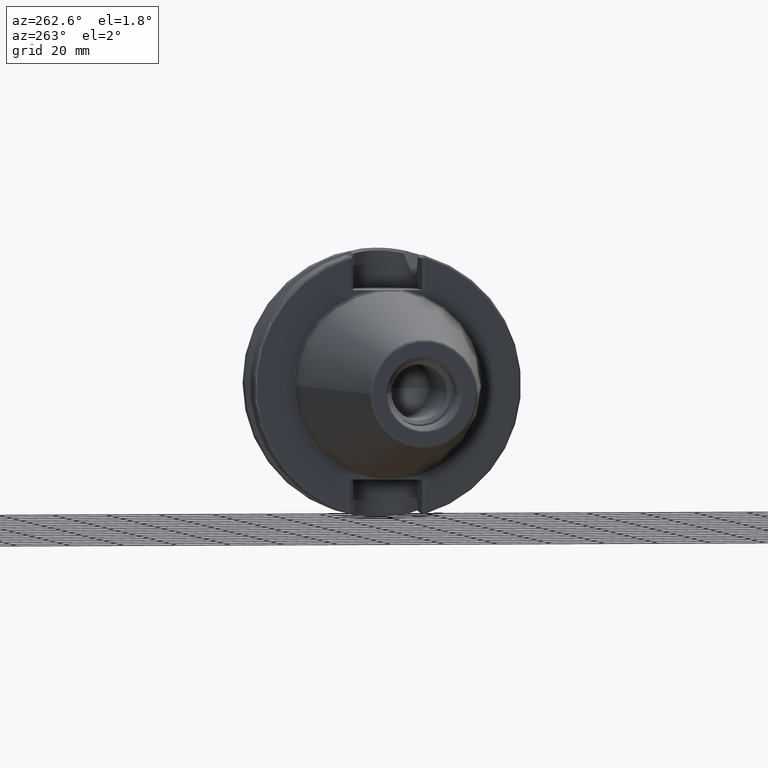
[diagram: clean part render]
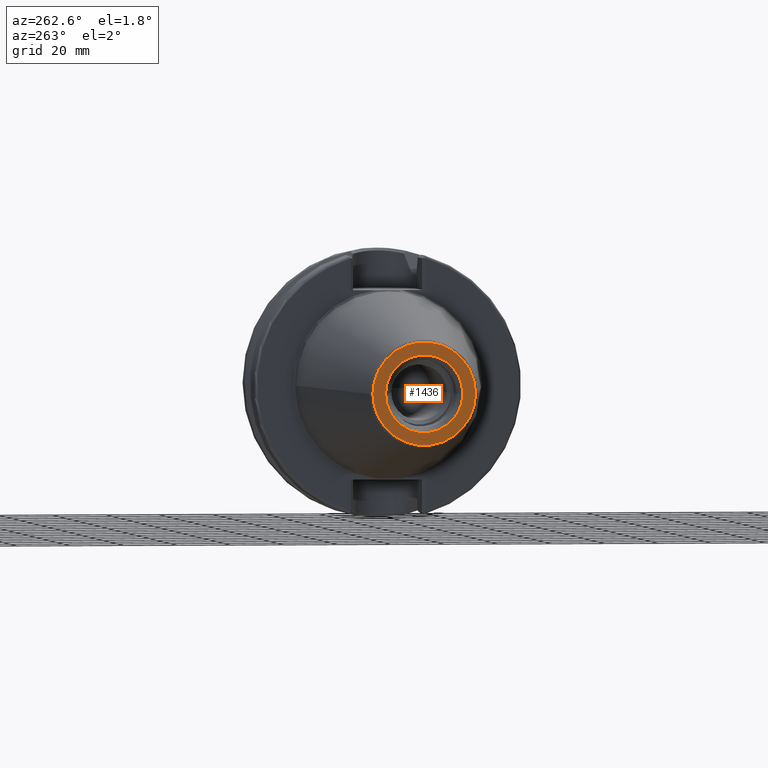
[diagram: same view with one face highlighted and labeled with its STEP entity id]
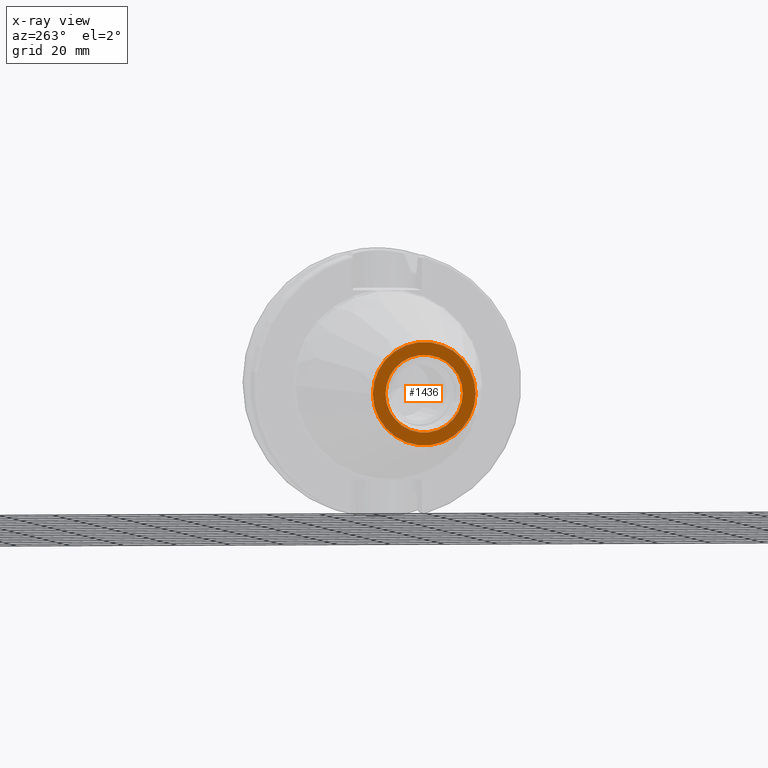
[diagram: x-ray of the same camera — body ghosted, the highlighted face saturated]
A machine part, auxiliary view. The second image highlights one B-rep face of the part: STEP entity #1436.
The next image is the same camera in x-ray: the body ghosted, the highlighted face saturated — about 0% of this face is hidden behind the body in this view.
In plain terms, the highlighted planar face has unit normal (1, 0, 0).
Its self-contained STEP definition (entity closure, byte-faithful):
#2=CARTESIAN_POINT('',(-1.018E2,0.E0,0.E0));
#3=DIRECTION('',(-1.E0,0.E0,0.E0));
#4=DIRECTION('',(0.E0,1.E0,0.E0));
#5=AXIS2_PLACEMENT_3D('',#2,#3,#4);
#7=CARTESIAN_POINT('',(-1.018E2,0.E0,0.E0));
#8=DIRECTION('',(1.E0,0.E0,0.E0));
#9=DIRECTION('',(0.E0,1.E0,0.E0));
#10=AXIS2_PLACEMENT_3D('',#7,#8,#9);
#12=CARTESIAN_POINT('',(-1.018E2,0.E0,0.E0));
#13=DIRECTION('',(1.E0,0.E0,0.E0));
#14=DIRECTION('',(0.E0,1.E0,0.E0));
#15=AXIS2_PLACEMENT_3D('',#12,#13,#14);
#17=CARTESIAN_POINT('',(-1.018E2,0.E0,0.E0));
#18=DIRECTION('',(1.E0,0.E0,0.E0));
#19=DIRECTION('',(0.E0,-1.E0,0.E0));
#20=AXIS2_PLACEMENT_3D('',#17,#18,#19);
#1169=CARTESIAN_POINT('',(-1.018E2,1.921319540766E1,0.E0));
#1171=VERTEX_POINT('',#1169);
#1173=CARTESIAN_POINT('',(-1.018E2,-1.921319540766E1,0.E0));
#1175=VERTEX_POINT('',#1173);
#1298=CARTESIAN_POINT('',(-1.018E2,1.446188021535E1,0.E0));
#1299=CARTESIAN_POINT('',(-1.018E2,-1.446188021535E1,0.E0));
#1300=VERTEX_POINT('',#1298);
#1301=VERTEX_POINT('',#1299);
#1419=CARTESIAN_POINT('',(-1.018E2,0.E0,0.E0));
#1420=DIRECTION('',(1.E0,0.E0,0.E0));
#1421=DIRECTION('',(0.E0,-1.E0,0.E0));
#1422=AXIS2_PLACEMENT_3D('',#1419,#1420,#1421);
#1423=PLANE('',#1422);
#1425=ORIENTED_EDGE('',*,*,#1424,.F.);
#1427=ORIENTED_EDGE('',*,*,#1426,.T.);
#1428=EDGE_LOOP('',(#1425,#1427));
#1429=FACE_OUTER_BOUND('',#1428,.F.);
#1431=ORIENTED_EDGE('',*,*,#1430,.F.);
#1433=ORIENTED_EDGE('',*,*,#1432,.F.);
#1434=EDGE_LOOP('',(#1431,#1433));
#1435=FACE_BOUND('',#1434,.F.);
#1436=ADVANCED_FACE('',(#1429,#1435),#1423,.F.);
#6=CIRCLE('',#5,1.921319540766E1);
#11=CIRCLE('',#10,1.921319540766E1);
#16=CIRCLE('',#15,1.446188021535E1);
#21=CIRCLE('',#20,1.446188021535E1);
#1424=EDGE_CURVE('',#1171,#1175,#6,.T.);
#1426=EDGE_CURVE('',#1171,#1175,#11,.T.);
#1430=EDGE_CURVE('',#1300,#1301,#16,.T.);
#1432=EDGE_CURVE('',#1301,#1300,#21,.T.);